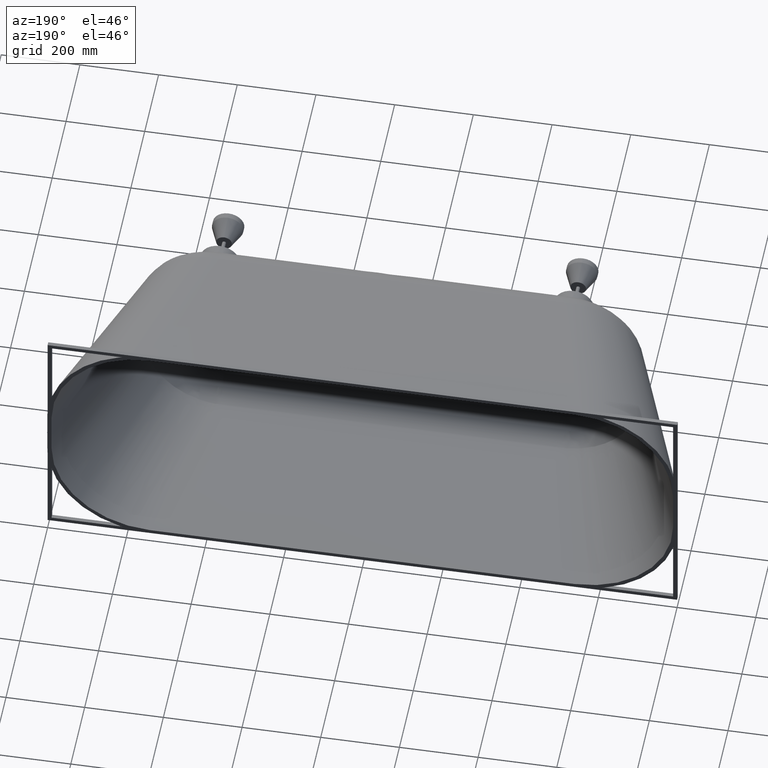
[diagram: clean part render]
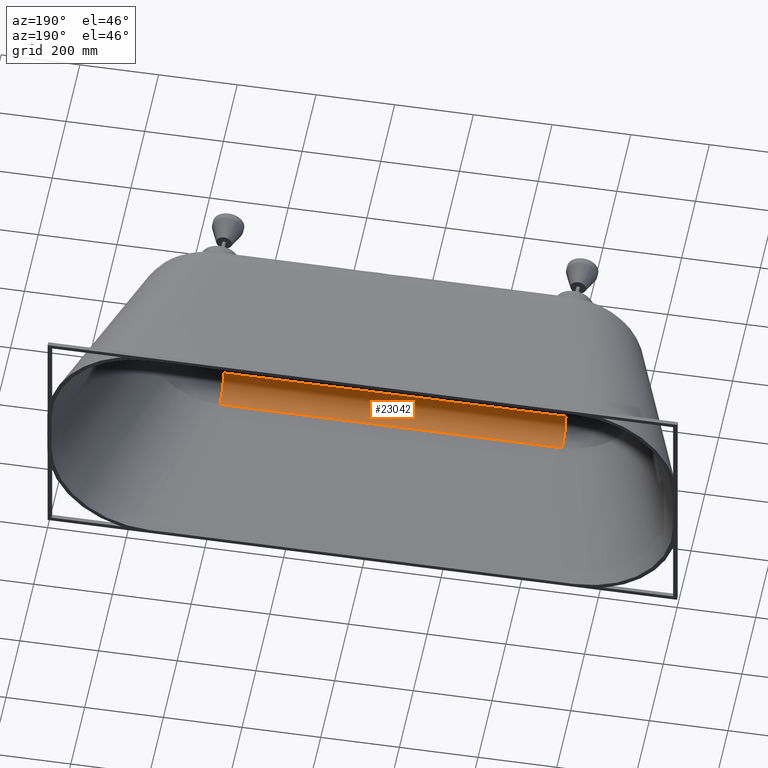
[diagram: same view with one face highlighted and labeled with its STEP entity id]
A machine part, auxiliary view. The second image highlights one B-rep face of the part: STEP entity #23042.
In plain terms, the highlighted face is a freeform B-spline surface patch.
Its self-contained STEP definition (entity closure, byte-faithful):
#128 = CARTESIAN_POINT ( 'NONE',  ( 434.9999999996827000, -468.0000000000000000, -196.6383647358045437 ) ) ;
#292 = CARTESIAN_POINT ( 'NONE',  ( 220.6123756193575787, -415.0030871190614334, -256.2282696761787975 ) ) ;
#1801 = VERTEX_POINT ( 'NONE', #15363 ) ;
#1928 = ORIENTED_EDGE ( 'NONE', *, *, #15222, .F. ) ;
#2243 = CARTESIAN_POINT ( 'NONE',  ( 434.9999999996827000, -468.0000000000000000, -196.6383647358045437 ) ) ;
#2845 = CARTESIAN_POINT ( 'NONE',  ( -145.0000128839973002, -468.0000001287858140, -250.0000000724419920 ) ) ;
#3601 = EDGE_CURVE ( 'NONE', #19654, #12126, #8453, .T. ) ;
#3666 = B_SPLINE_CURVE_WITH_KNOTS ( 'NONE', 3,
 ( #10429, #18566, #292, #8435, #16581, #24689, #6423 ),
 .UNSPECIFIED., .F., .F.,
 ( 4, 1, 1, 1, 4 ),
 ( 0.0000000000000000000, 0.2114933738580992706, 0.4349999998898471110, 0.6585066259215955897, 0.8700000193255210679 ),
 .UNSPECIFIED. ) ;
#4145 = CARTESIAN_POINT ( 'NONE',  ( -435.0000193258382524, -415.0030871190609787, -256.2282696761787406 ) ) ;
#4244 = CARTESIAN_POINT ( 'NONE',  ( 164.9999806741617192, -468.0000000000000000, -196.6383647358044584 ) ) ;
#4553 = CARTESIAN_POINT ( 'NONE',  ( 434.9999999996828137, -415.0030871190610355, -256.2282696761787975 ) ) ;
#4849 = CARTESIAN_POINT ( 'NONE',  ( -435.0000193258383661, -468.0000000000000000, -249.9999999999999716 ) ) ;
#5102 = DIRECTION ( 'NONE',  ( 0.0000000000000000000, 0.0000000000000000000, -1.000000000000000000 ) ) ;
#6259 = CARTESIAN_POINT ( 'NONE',  ( -315.0000193258382524, -468.0000000000000000, -196.6383647358046005 ) ) ;
#6423 = CARTESIAN_POINT ( 'NONE',  ( -435.0000193258382524, -415.0030871190609787, -256.2282696761787406 ) ) ;
#6856 = FACE_OUTER_BOUND ( 'NONE', #15484, .T. ) ;
#8268 = CARTESIAN_POINT ( 'NONE',  ( -435.0000193258382524, -468.0000000000000000, -196.6383647358044868 ) ) ;
#8311 =( BOUNDED_SURFACE ( )  B_SPLINE_SURFACE ( 3, 2, ( 
 ( #23130, #4849, #13002 ),
 ( #21136, #2845, #10996 ),
 ( #19133, #14717, #22832 ),
 ( #4553, #12708, #20842 ) ),
 .UNSPECIFIED., .F., .F., .T. ) 
 B_SPLINE_SURFACE_WITH_KNOTS ( ( 4, 4 ),
 ( 3, 3 ),
 ( 5.551115123125782702E-17, 0.8700000193255210679 ),
 ( 0.0000000000000000000, 1.000000000000000000 ),
 .UNSPECIFIED. ) 
 GEOMETRIC_REPRESENTATION_ITEM ( )  RATIONAL_B_SPLINE_SURFACE ( (
 ( 1.000000000000000000, 0.7472342733878771792, 1.000000000000000000),
 ( 1.000000000000000000, 0.7472342733878771792, 1.000000000000000000),
 ( 1.000000000000000000, 0.7472342733878771792, 1.000000000000000000),
 ( 1.000000000000000000, 0.7472342733878771792, 1.000000000000000000) ) ) 
 REPRESENTATION_ITEM ( '' )  SURFACE ( )  );
#8374 = B_SPLINE_CURVE_WITH_KNOTS ( 'NONE', 3,
 ( #8268, #16416, #24528, #6259, #14404, #22524, #4244, #12396, #20531, #2243 ),
 .UNSPECIFIED., .F., .F.,
 ( 4, 3, 3, 4 ),
 ( 0.0000000000000000000, 0.1199999999999999817, 0.5999999999999999778, 0.8700000193255208458 ),
 .UNSPECIFIED. ) ;
#8392 = DIRECTION ( 'NONE',  ( 1.000000000000000000, 0.0000000000000000000, 0.0000000000000000000 ) ) ;
#8435 = CARTESIAN_POINT ( 'NONE',  ( -2.146942252647592211E-14, -415.0030871190600692, -256.2282696761785132 ) ) ;
#8453 = CIRCLE ( 'NONE', #23350, 60.00000000000000000 ) ;
#10429 = CARTESIAN_POINT ( 'NONE',  ( 434.9999999996827000, -415.0030871190610355, -256.2282696761787975 ) ) ;
#10996 = CARTESIAN_POINT ( 'NONE',  ( -145.0000128839974991, -468.0000000000000000, -196.6383647961727092 ) ) ;
#12126 = VERTEX_POINT ( 'NONE', #12330 ) ;
#12330 = CARTESIAN_POINT ( 'NONE',  ( 434.9999999996827000, -415.0030871190610355, -256.2282696761787975 ) ) ;
#12396 = CARTESIAN_POINT ( 'NONE',  ( 254.9999871160020177, -468.0000000000000000, -196.6383647358044584 ) ) ;
#12708 = CARTESIAN_POINT ( 'NONE',  ( 434.9999999996827569, -468.0000000000000000, -250.0000000000000284 ) ) ;
#13002 = CARTESIAN_POINT ( 'NONE',  ( -435.0000193258383092, -468.0000000000000000, -196.6383647358043447 ) ) ;
#13833 = ORIENTED_EDGE ( 'NONE', *, *, #3601, .T. ) ;
#14404 = CARTESIAN_POINT ( 'NONE',  ( -155.0000193258382808, -468.0000000000000000, -196.6383647358046574 ) ) ;
#14717 = CARTESIAN_POINT ( 'NONE',  ( 144.9999935578418047, -468.0000000241473685, -250.0000000120737127 ) ) ;
#15222 = EDGE_CURVE ( 'NONE', #1801, #16167, #15737, .T. ) ;
#15262 = CARTESIAN_POINT ( 'NONE',  ( -435.0000193258382524, -408.0000000000000000, -196.6383647358044868 ) ) ;
#15363 = CARTESIAN_POINT ( 'NONE',  ( -435.0000193258382524, -468.0000000000000000, -196.6383647358044868 ) ) ;
#15484 = EDGE_LOOP ( 'NONE', ( #1928, #23306, #13833, #24517 ) ) ;
#15737 = CIRCLE ( 'NONE', #19126, 60.00000000000000000 ) ;
#16167 = VERTEX_POINT ( 'NONE', #4145 ) ;
#16416 = CARTESIAN_POINT ( 'NONE',  ( -395.0000193258382524, -468.0000000000000000, -196.6383647358044868 ) ) ;
#16581 = CARTESIAN_POINT ( 'NONE',  ( -220.6123821675855652, -415.0030871190617177, -256.2282696761789680 ) ) ;
#17700 = EDGE_CURVE ( 'NONE', #12126, #16167, #3666, .T. ) ;
#18566 = CARTESIAN_POINT ( 'NONE',  ( 365.1954419020046316, -415.0030871190609219, -256.2282696761787975 ) ) ;
#19126 = AXIS2_PLACEMENT_3D ( 'NONE', #15262, #23386, #5102 ) ;
#19133 = CARTESIAN_POINT ( 'NONE',  ( 144.9999935578417762, -415.0030871349399604, -256.2282696743126849 ) ) ;
#19654 = VERTEX_POINT ( 'NONE', #128 ) ;
#19656 = EDGE_CURVE ( 'NONE', #1801, #19654, #8374, .T. ) ;
#20522 = CARTESIAN_POINT ( 'NONE',  ( 434.9999999996827000, -408.0000000000000000, -196.6383647358045437 ) ) ;
#20531 = CARTESIAN_POINT ( 'NONE',  ( 344.9999935578424015, -468.0000000000000000, -196.6383647358045437 ) ) ;
#20842 = CARTESIAN_POINT ( 'NONE',  ( 434.9999999996828137, -468.0000000000000000, -196.6383647358045437 ) ) ;
#21136 = CARTESIAN_POINT ( 'NONE',  ( -145.0000128839971580, -415.0030872007967560, -256.2282696665729418 ) ) ;
#22524 = CARTESIAN_POINT ( 'NONE',  ( 4.999980674161741412, -468.0000000000000000, -196.6383647358044300 ) ) ;
#22647 = DIRECTION ( 'NONE',  ( 0.0000000000000000000, 0.0000000000000000000, -1.000000000000000000 ) ) ;
#22832 = CARTESIAN_POINT ( 'NONE',  ( 144.9999935578418899, -468.0000000000000000, -196.6383647358045437 ) ) ;
#23042 = ADVANCED_FACE ( 'NONE', ( #6856 ), #8311, .F. ) ;
#23130 = CARTESIAN_POINT ( 'NONE',  ( -435.0000193258383092, -415.0030871190610355, -256.2282696761786269 ) ) ;
#23306 = ORIENTED_EDGE ( 'NONE', *, *, #19656, .T. ) ;
#23350 = AXIS2_PLACEMENT_3D ( 'NONE', #20522, #8392, #22647 ) ;
#23386 = DIRECTION ( 'NONE',  ( 1.000000000000000000, 0.0000000000000000000, 0.0000000000000000000 ) ) ;
#24517 = ORIENTED_EDGE ( 'NONE', *, *, #17700, .T. ) ;
#24528 = CARTESIAN_POINT ( 'NONE',  ( -355.0000193258382524, -468.0000000000000000, -196.6383647358046005 ) ) ;
#24689 = CARTESIAN_POINT ( 'NONE',  ( -365.1954548950878348, -415.0030871190609219, -256.2282696761787975 ) ) ;